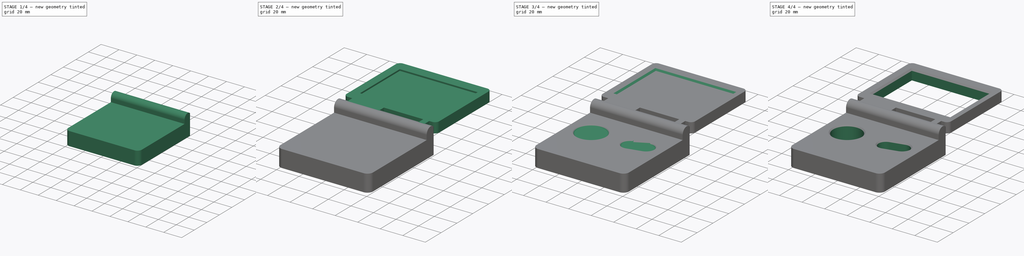
[diagram: build sequence overview — one tinted view per stage of 4, left to right]
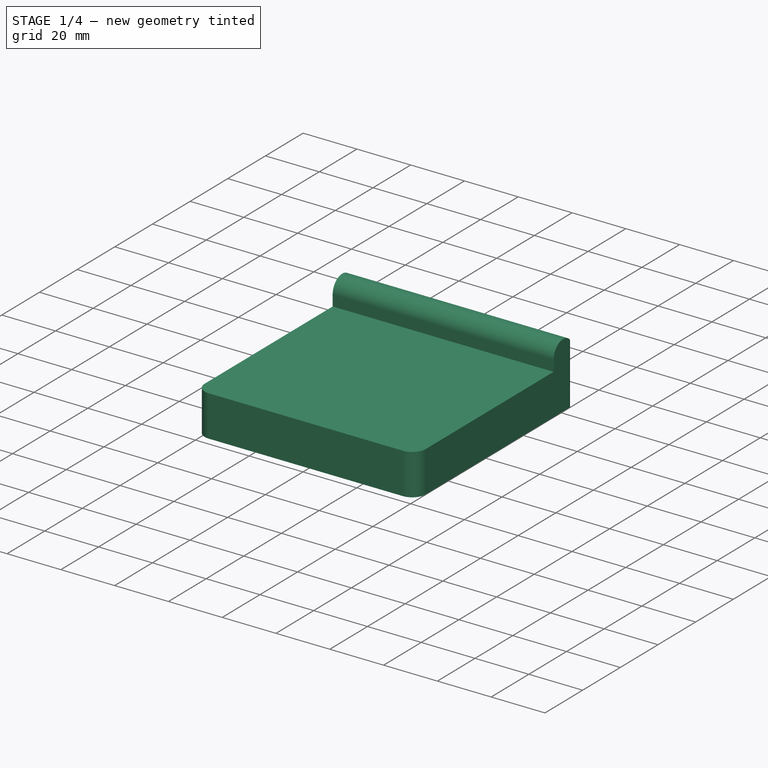
[diagram: stage 1 of 4 — iso view after this stage's code; geometry added in this stage tinted green]
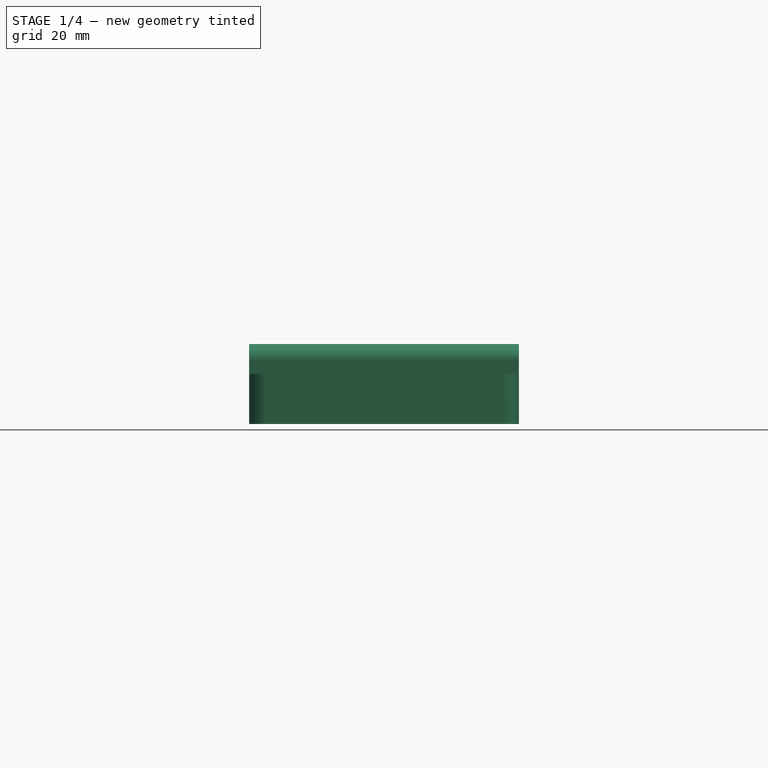
[diagram: stage 1 of 4 — front view after this stage's code; geometry added in this stage tinted green]
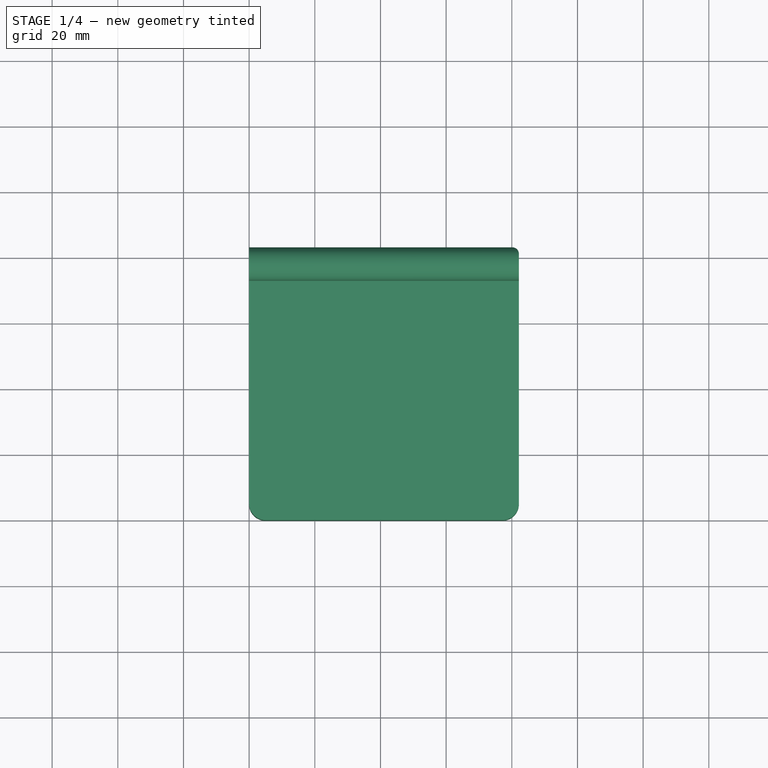
[diagram: stage 1 of 4 — top view after this stage's code; geometry added in this stage tinted green]
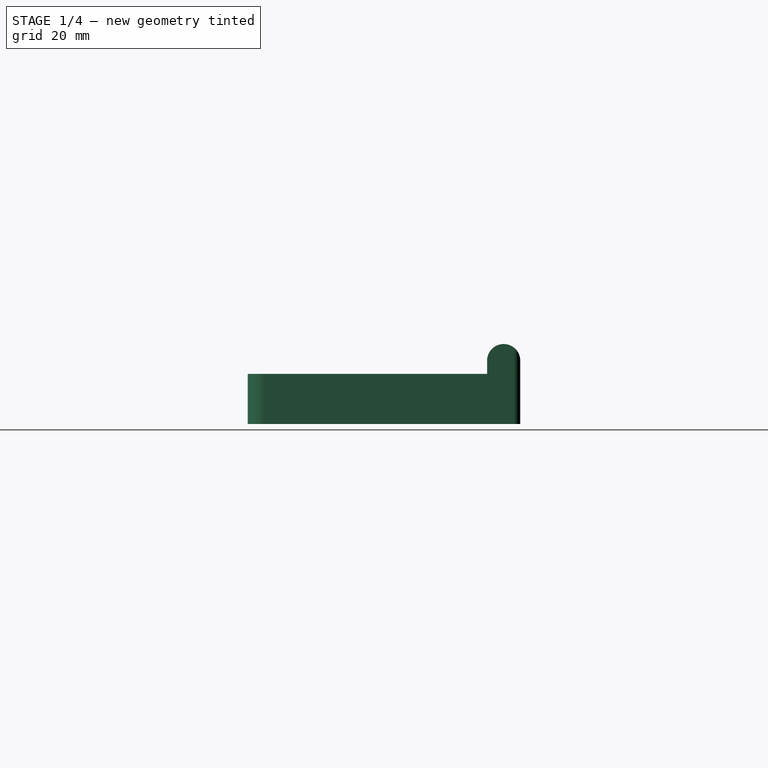
[diagram: stage 1 of 4 — right view after this stage's code; geometry added in this stage tinted green]
FCSTD DOCUMENT  (FreeCAD 0.20R29177 +426 (Git))
Label: GBA SP Icon
License: Creative Commons Attribution-NonCommercial-ShareAlike
LicenseURL: http://creativecommons.org/licenses/by-nc-sa/4.0/
objects: PartDesign::Pocket×7, Sketcher::SketchObject×5, PartDesign::Pad×3, PartDesign::Chamfer×2, PartDesign::Body×1, TechDraw::DrawSVGTemplate×1, TechDraw::DrawViewPart×1, TechDraw::DrawPage×1
note: 30 computed .brp shape members not serialized (recipe doc carries the construction recipe); baked Part::Feature solids carry a one-line shape summary decoded from their .brp

FEATURE [Sketcher::SketchObject] Sketch
  FullyConstrained = true
  MapMode = 5
  Support = -> [XY_Plane]
  sketch-geometry (12):
    g0: LineSegment StartX=0 StartY=0 StartZ=0 EndX=82.15 EndY=0 EndZ=0
    g1: LineSegment StartX=82.15 StartY=0 StartZ=0 EndX=82.15 EndY=83 EndZ=0
    g2: LineSegment StartX=82.15 StartY=83 StartZ=0 EndX=0 EndY=83 EndZ=0
    g3: LineSegment StartX=0 StartY=83 StartZ=0 EndX=0 EndY=0 EndZ=0
    g4: LineSegment StartX=5 StartY=0 StartZ=0 EndX=77.15 EndY=0 EndZ=0
    g5: LineSegment StartX=82.15 StartY=5 StartZ=0 EndX=82.15 EndY=81 EndZ=0
    g6: LineSegment StartX=80.15 StartY=83 StartZ=0 EndX=2 EndY=83 EndZ=0
    g7: LineSegment StartX=0 StartY=81 StartZ=0 EndX=0 EndY=5 EndZ=0
    g8: ArcOfCircle CenterX=2 CenterY=81 CenterZ=0 NormalX=0 NormalY=0 NormalZ=1 AngleXU=0 Radius=2 StartAngle=1.5708 EndAngle=3.14159
    g9: ArcOfCircle CenterX=80.15 CenterY=81 CenterZ=0 NormalX=0 NormalY=0 NormalZ=1 AngleXU=0 Radius=2 StartAngle=-1.33e-14 EndAngle=1.5708
    g10: ArcOfCircle CenterX=77.15 CenterY=5 CenterZ=0 NormalX=0 NormalY=0 NormalZ=1 AngleXU=0 Radius=5 StartAngle=4.71239 EndAngle=6.28319
    g11: ArcOfCircle CenterX=5 CenterY=5 CenterZ=0 NormalX=0 NormalY=0 NormalZ=1 AngleXU=0 Radius=5 StartAngle=3.14159 EndAngle=4.71239
  constraints (31):
    c: Coincident(g0,g1)
    c: Coincident(g1,g2)
    c: Coincident(g2,g3)
    c: Coincident(g3,g0)
    c: Horizontal(g0)
    c: Horizontal(g2)
    c: Vertical(g1)
    c: Vertical(g3)
    c: Coincident(g0,g-1)
    c: DistanceX(g0,g0) = 82.15
    c: DistanceY(g1,g1) = 83
    c: Horizontal(g4)
    c: Horizontal(g6)
    c: Vertical(g5)
    c: Vertical(g7)
    c: Tangent(g7,g8) = -1.5708
    c: Tangent(g6,g8) = -1.5708
    c: Tangent(g6,g9) = -1.5708
    c: Tangent(g5,g9) = -1.5708
    c: Tangent(g5,g10) = -1.5708
    c: Tangent(g4,g10) = -1.5708
    c: Tangent(g4,g11) = -1.5708
    c: Tangent(g7,g11) = -1.5708
    c: Equal(g11,g10)
    c: Equal(g9,g8)
    c: PointOnObject(g7,g3)
    c: PointOnObject(g5,g1)
    c: PointOnObject(g6,g2)
    c: PointOnObject(g4,g0)
    c: Diameter(g10) = 10
    c: Diameter(g9) = 4
FEATURE [PartDesign::Pad] Pad
  Direction = (0,0,1)
  Length = 15.25
  Length2 = 10
  Profile = -> Sketch
  ReferenceAxis = -> Sketch [N_Axis]
  Type = 0
FEATURE [Sketcher::SketchObject] Sketch002
  ExternalGeometry = -> [Pad]
  FullyConstrained = true
  MapMode = 5
  Placement = pos=(82.15,0,0) rot=(0.57735,0.57735,0.57735;2.0944rad)
  Support = -> [Pad]
  sketch-geometry (5):
    g0: LineSegment StartX=83 StartY=15.25 StartZ=0 EndX=72.9 EndY=15.25 EndZ=0
    g1: LineSegment StartX=77.95 StartY=24.35 StartZ=0 EndX=77.95 EndY=15.25 EndZ=0
    g2: LineSegment StartX=72.9 StartY=15.25 StartZ=0 EndX=72.9 EndY=19.3 EndZ=0
    g3: LineSegment StartX=83 StartY=15.25 StartZ=0 EndX=83 EndY=19.3 EndZ=0
    g4: ArcOfCircle CenterX=77.95 CenterY=19.3 CenterZ=0 NormalX=0 NormalY=0 NormalZ=1 AngleXU=0 Radius=5.05 StartAngle=1.60054e-11 EndAngle=3.14159
  constraints (13):
    c: Coincident(g0,g-4)
    c: PointOnObject(g0,g-3)
    c: DistanceX(g0,g0) = 10.1
    c: Vertical(g1)
    c: Symmetric(g0,g0,g1)
    c: DistanceY(g1,g1) = 9.1
    c: Coincident(g2,g0)
    c: Vertical(g2)
    c: Coincident(g3,g0)
    c: Vertical(g3)
    c: PointOnObject(g1,g4)
    c: Tangent(g4,g2) = 1.5708
    c: Tangent(g4,g3) = -1.5708
FEATURE [PartDesign::Pad] Pad001
  BaseFeature = -> Pad
  Direction = (1,0,0)
  Length = 10
  Length2 = 10
  Profile = -> Sketch002
  ReferenceAxis = -> Sketch002 [N_Axis]
  Reversed = true
  Type = 3
  UpToFace = -> Pad [Face7]
FEATURE [PartDesign::Pocket] Pocket
  BaseFeature = -> Pad001
  Direction = (0,-6.339e-13,1)
  Length = 10
  Length2 = 5
  Profile = -> Pad001 [Face14]
  Type = 0
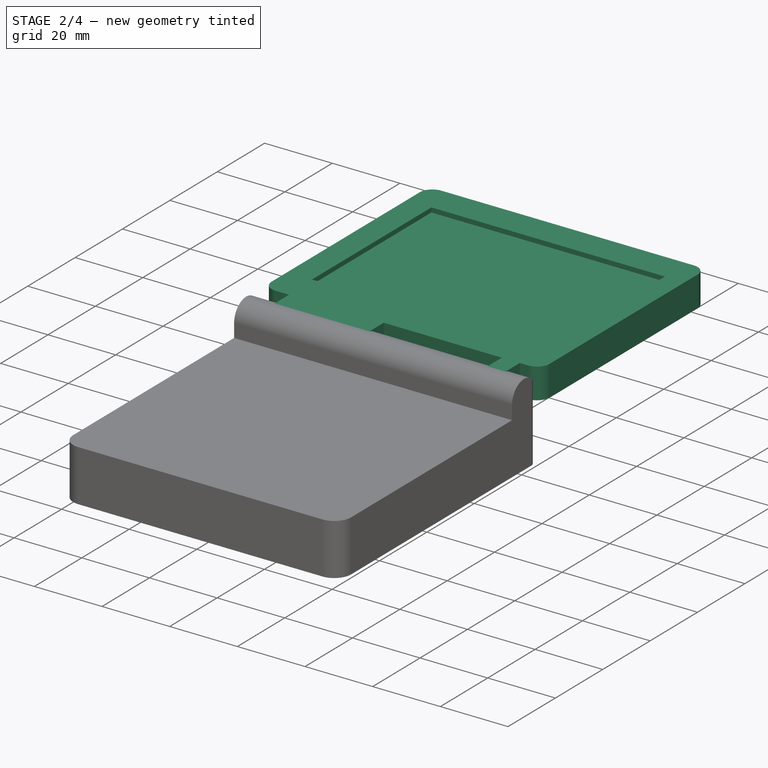
[diagram: stage 2 of 4 — iso view after this stage's code; geometry added in this stage tinted green]
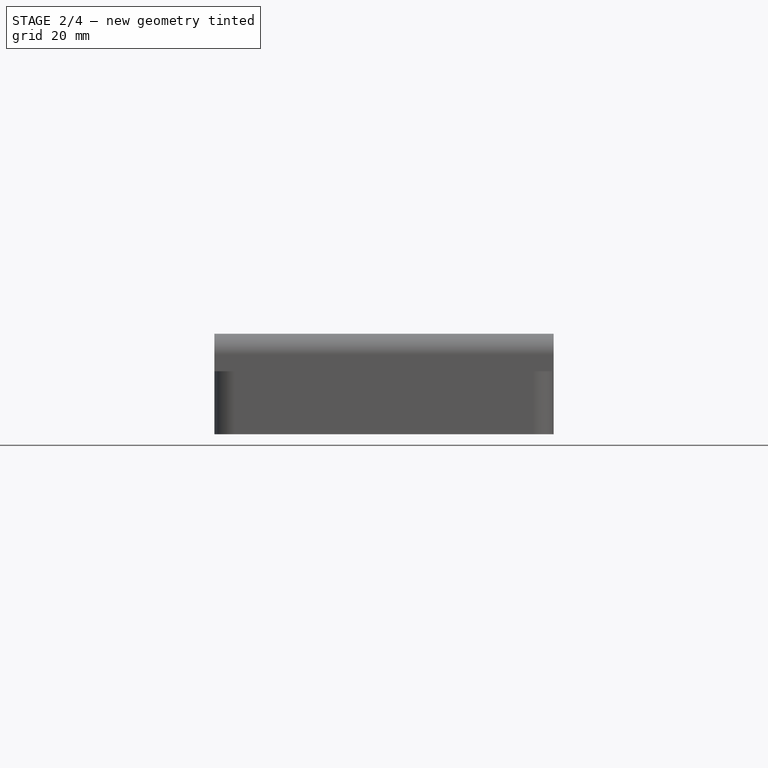
[diagram: stage 2 of 4 — front view after this stage's code; geometry added in this stage tinted green]
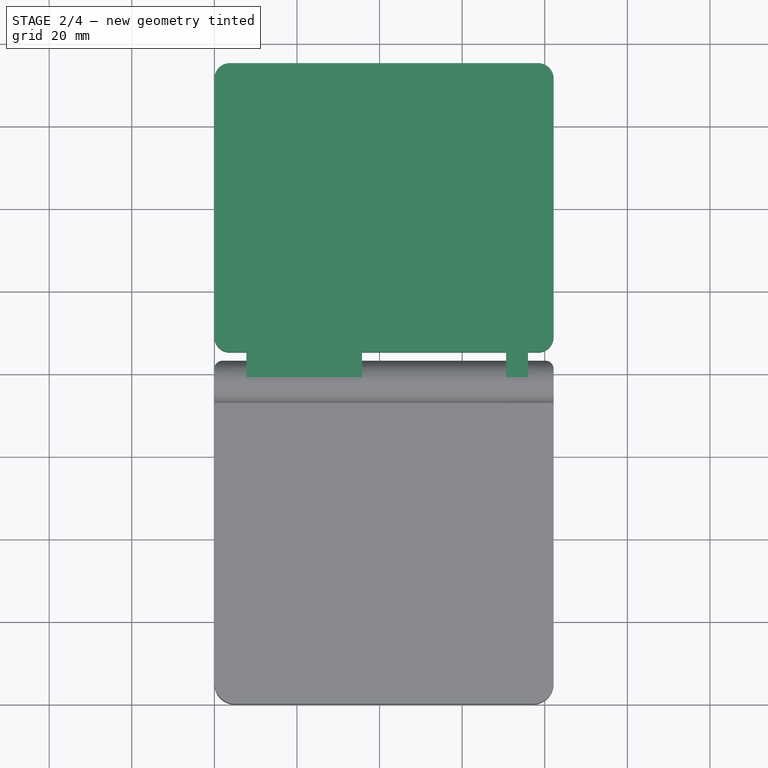
[diagram: stage 2 of 4 — top view after this stage's code; geometry added in this stage tinted green]
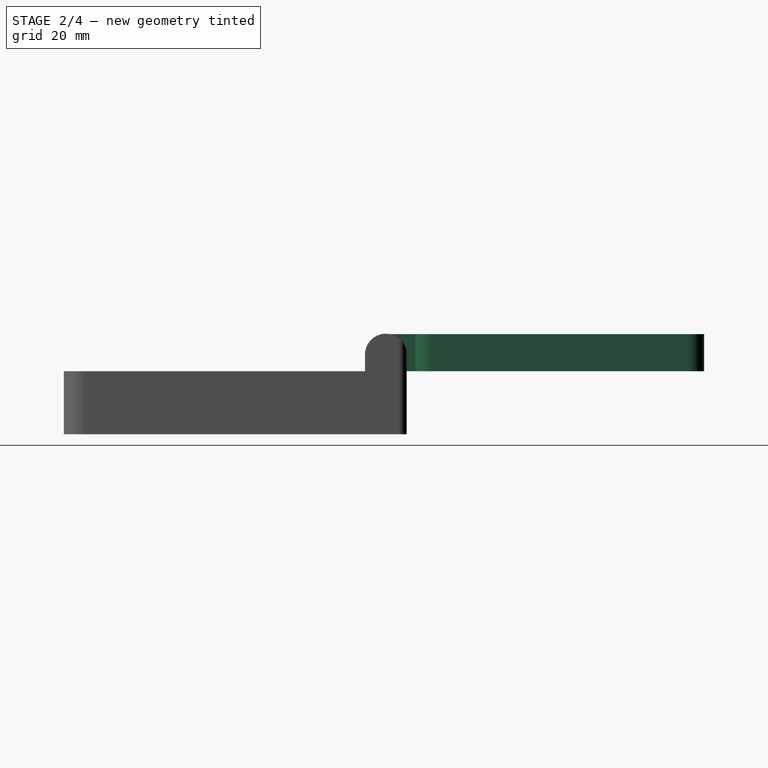
[diagram: stage 2 of 4 — right view after this stage's code; geometry added in this stage tinted green]
FEATURE [PartDesign::Pocket] Pocket001
  BaseFeature = -> Pocket
  Direction = (0,-6.339e-13,1)
  Length = 10
  Length2 = 5
  Profile = -> Pocket [Face16]
  Type = 0
FEATURE [Sketcher::SketchObject] Sketch003
  ExternalGeometry = -> [Pocket001]
  FullyConstrained = true
  MapMode = 5
  Placement = pos=(0,0,15.25) rot=(0,0,1;0rad)
  Support = -> [Pocket001]
  sketch-geometry (25):
    g0: LineSegment StartX=0 StartY=83 StartZ=0 EndX=82.15 EndY=83 EndZ=0
    g1: LineSegment StartX=82.15 StartY=83 StartZ=0 EndX=82.15 EndY=155 EndZ=0
    g2: LineSegment StartX=82.15 StartY=155 StartZ=0 EndX=0 EndY=155 EndZ=0
    g3: LineSegment StartX=0 StartY=155 StartZ=0 EndX=0 EndY=83 EndZ=0
    g4: LineSegment StartX=82.15 StartY=72.9 StartZ=0 EndX=82.15 EndY=83 EndZ=0
    g5: LineSegment StartX=3.75 StartY=155 StartZ=0 EndX=78.4 EndY=155 EndZ=0
    g6: LineSegment StartX=82.15 StartY=151.25 StartZ=0 EndX=82.15 EndY=88.75 EndZ=0
    g7: LineSegment StartX=78.4 StartY=85 StartZ=0 EndX=3.75 EndY=85 EndZ=0
    g8: LineSegment StartX=0 StartY=88.75 StartZ=0 EndX=0 EndY=151.25 EndZ=0
    g9: ArcOfCircle CenterX=78.4 CenterY=88.75 CenterZ=0 NormalX=0 NormalY=0 NormalZ=1 AngleXU=0 Radius=3.75 StartAngle=4.71239 EndAngle=6.28319
    g10: ArcOfCircle CenterX=3.75 CenterY=88.75 CenterZ=0 NormalX=0 NormalY=0 NormalZ=1 AngleXU=0 Radius=3.75 StartAngle=3.14159 EndAngle=4.71239
    g11: ArcOfCircle CenterX=3.75 CenterY=151.25 CenterZ=0 NormalX=0 NormalY=0 NormalZ=1 AngleXU=0 Radius=3.75 StartAngle=1.5708 EndAngle=3.14159
    g12: ArcOfCircle CenterX=78.4 CenterY=151.25 CenterZ=0 NormalX=0 NormalY=0 NormalZ=1 AngleXU=0 Radius=3.75 StartAngle=-2.7e-15 EndAngle=1.5708
    g13: LineSegment StartX=7.75 StartY=85 StartZ=0 EndX=35.75 EndY=85 EndZ=0
    g14: LineSegment StartX=35.75 StartY=85 StartZ=0 EndX=35.75 EndY=77.95 EndZ=0
    g15: LineSegment StartX=35.75 StartY=77.95 StartZ=0 EndX=7.75 EndY=77.95 EndZ=0
    g16: LineSegment StartX=7.75 StartY=77.95 StartZ=0 EndX=7.75 EndY=85 EndZ=0
    g17: LineSegment StartX=82.15 StartY=77.95 StartZ=0 EndX=0 EndY=77.95 EndZ=0
    g18: LineSegment StartX=75.95 StartY=85 StartZ=0 EndX=70.65 EndY=85 EndZ=0
    g19: LineSegment StartX=70.65 StartY=85 StartZ=0 EndX=70.65 EndY=77.95 EndZ=0
    g20: LineSegment StartX=70.65 StartY=77.95 StartZ=0 EndX=75.95 EndY=77.95 EndZ=0
    g21: LineSegment StartX=75.95 StartY=77.95 StartZ=0 EndX=75.95 EndY=85 EndZ=0
    g22: LineSegment StartX=3.75 StartY=85 StartZ=0 EndX=7.75 EndY=85 EndZ=0
    g23: LineSegment StartX=35.75 StartY=85 StartZ=0 EndX=70.65 EndY=85 EndZ=0
    g24: LineSegment StartX=75.95 StartY=85 StartZ=0 EndX=78.4 EndY=85 EndZ=0
  constraints (67):
    c: Coincident(g0,g1)
    c: Coincident(g1,g2)
    c: Coincident(g2,g3)
    c: Coincident(g3,g0)
    c: Horizontal(g0)
    c: Horizontal(g2)
    c: Vertical(g1)
    c: Vertical(g3)
    c: PointOnObject(g0,g-2)
    c: Coincident(g4,g-4)
    c: Coincident(g4,g0)
    c: Vertical(g4)
    c: PointOnObject(g-3,g0)
    c: DistanceY(g1,g1) = 72
    c: Horizontal(g5)
    c: Horizontal(g7)
    c: Vertical(g6)
    c: Vertical(g8)
    c: Tangent(g7,g9) = 1.5708
    c: Tangent(g6,g9) = 1.5708
    c: Tangent(g7,g10) = 1.5708
    c: Tangent(g8,g10) = 1.5708
    c: Tangent(g8,g11) = 1.5708
    c: Tangent(g5,g11) = 1.5708
    c: Tangent(g5,g12) = 1.5708
    c: Tangent(g6,g12) = 1.5708
    c: PointOnObject(g5,g2)
    c: PointOnObject(g6,g1)
    c: PointOnObject(g8,g3)
    c: DistanceY(g4,g7) = 2
    c: Equal(g12,g11)
    c: Equal(g11,g10)
    c: Equal(g10,g9)
    c: Diameter(g12) = 7.5
    c: Coincident(g13,g14)
    c: Coincident(g14,g15)
    c: Coincident(g15,g16)
    c: Coincident(g16,g13)
    c: Horizontal(g13)
    c: Horizontal(g15)
    c: Vertical(g14)
    c: Vertical(g16)
    c: PointOnObject(g13,g7)
    c: PointOnObject(g17,g-2)
    c: Horizontal(g17)
    c: Symmetric(g0,g4,g17)
    c: PointOnObject(g14,g17)
    c: DistanceX(g15,g15) = 28
    c: DistanceX(g0,g16) = 7.75
    c: Coincident(g18,g19)
    c: Coincident(g19,g20)
    c: Coincident(g20,g21)
    c: Coincident(g21,g18)
    c: Horizontal(g18)
    c: Horizontal(g20)
    c: Vertical(g19)
    c: Vertical(g21)
    c: PointOnObject(g18,g7)
    c: PointOnObject(g19,g17)
    c: DistanceX(g20,g20) = 5.3
    c: DistanceX(g20,g17) = 6.2
    c: Coincident(g22,g10)
    c: Coincident(g22,g16)
    c: Coincident(g23,g14)
    c: Coincident(g23,g19)
    c: Coincident(g24,g21)
    c: Coincident(g24,g9)
FEATURE [PartDesign::Pad] Pad002
  BaseFeature = -> Pocket001
  Direction = (0,0,1)
  Length = 9
  Length2 = 10
  Offset = 9.1
  Profile = -> Sketch003
  ReferenceAxis = -> Sketch003 [N_Axis]
  Refine = true
  Type = 0
FEATURE [Sketcher::SketchObject] Sketch005
  ExternalGeometry = -> [Pad002]
  FullyConstrained = true
  MapMode = 5
  Placement = pos=(0,0,24.25) rot=(0,0,1;0rad)
  Support = -> [Pad002]
  sketch-geometry (4):
    g0: LineSegment StartX=7.3 StartY=145.75 StartZ=0 EndX=76.35 EndY=145.75 EndZ=0
    g1: LineSegment StartX=76.35 StartY=145.75 StartZ=0 EndX=76.35 EndY=95.35 EndZ=0
    g2: LineSegment StartX=76.35 StartY=95.35 StartZ=0 EndX=7.3 EndY=95.35 EndZ=0
    g3: LineSegment StartX=7.3 StartY=95.35 StartZ=0 EndX=7.3 EndY=145.75 EndZ=0
  constraints (12):
    c: Coincident(g0,g1)
    c: Coincident(g1,g2)
    c: Coincident(g2,g3)
    c: Coincident(g3,g0)
    c: Horizontal(g0)
    c: Horizontal(g2)
    c: Vertical(g1)
    c: Vertical(g3)
    c: DistanceX(g0,g-4) = 5.8
    c: DistanceY(g0,g-3) = 9.25
    c: DistanceY(g-6,g1) = 10.35
    c: DistanceX(g-5,g2) = 7.3
FEATURE [PartDesign::Pocket] Pocket002
  BaseFeature = -> Pad002
  Direction = (0,0,-1)
  Length = 1.35
  Length2 = 5
  Profile = -> Sketch005
  ReferenceAxis = -> Sketch005 [N_Axis]
  Type = 0
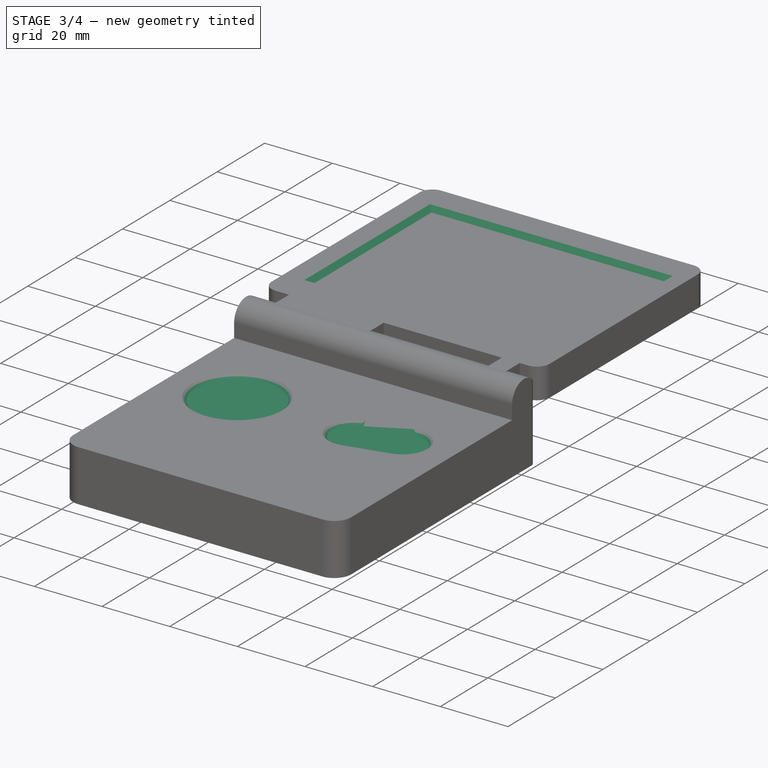
[diagram: stage 3 of 4 — iso view after this stage's code; geometry added in this stage tinted green]
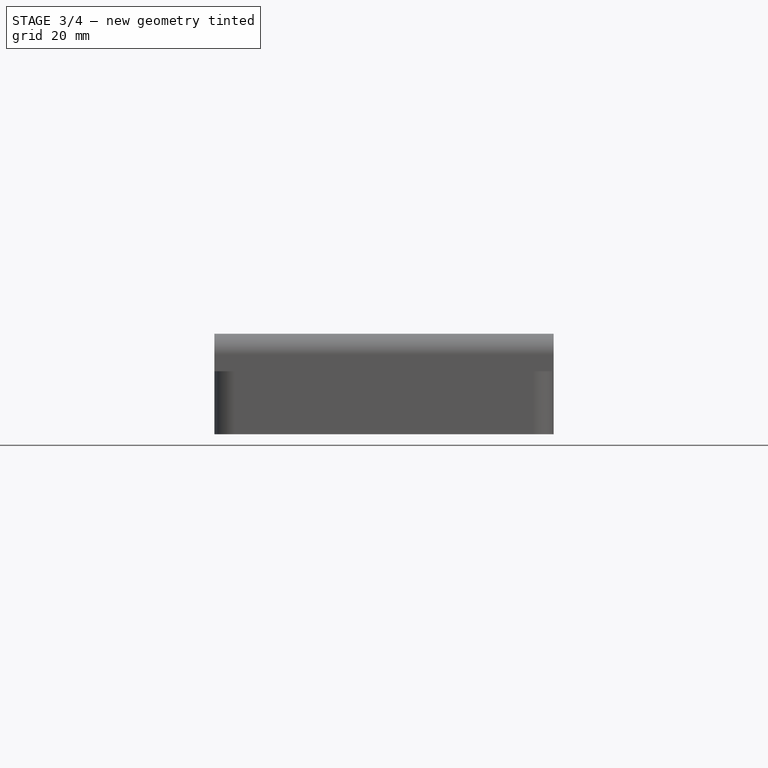
[diagram: stage 3 of 4 — front view after this stage's code; geometry added in this stage tinted green]
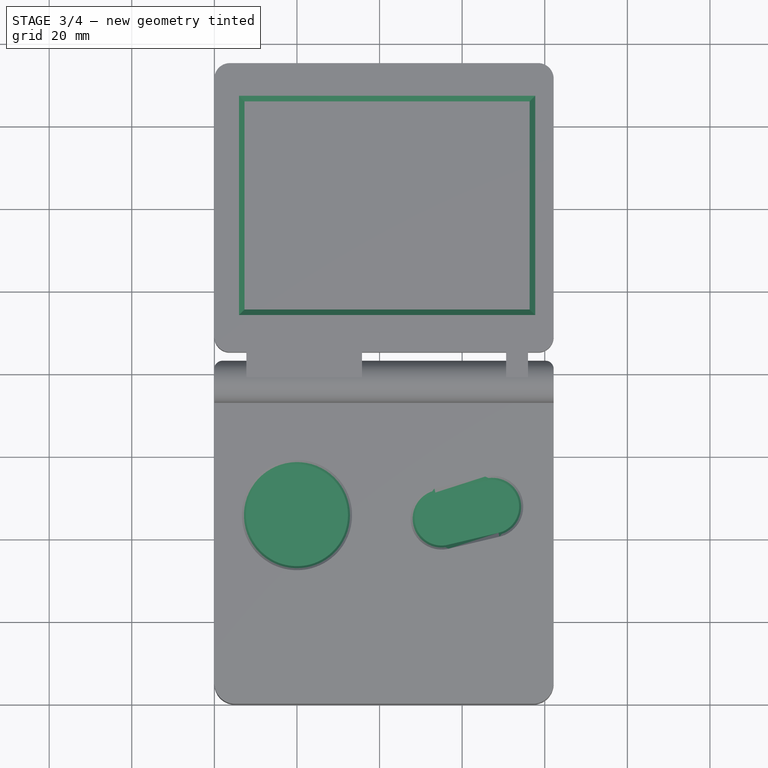
[diagram: stage 3 of 4 — top view after this stage's code; geometry added in this stage tinted green]
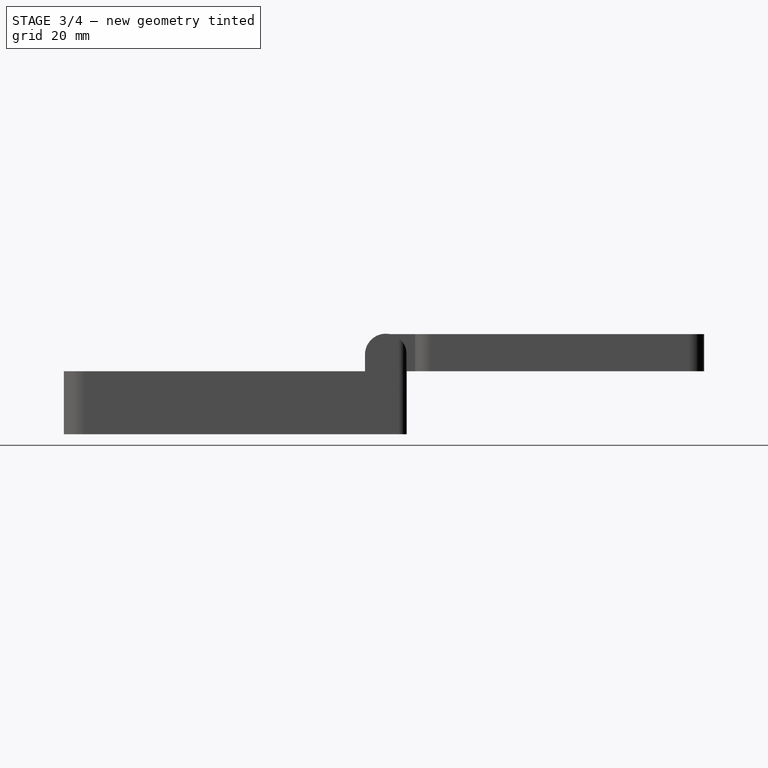
[diagram: stage 3 of 4 — right view after this stage's code; geometry added in this stage tinted green]
FEATURE [PartDesign::Chamfer] Chamfer
  Angle = 45
  Base = -> Pocket002 [Edge59,Edge62,Edge61,Edge60]
  BaseFeature = -> Pocket002
  ChamferType = 0
  FlipDirection = false
  Size = 1.34
  Size2 = 1
  SupportTransform = false
  UseAllEdges = false
FEATURE [Sketcher::SketchObject] Sketch006
  ExternalGeometry = -> [Chamfer]
  FullyConstrained = true
  MapMode = 5
  Placement = pos=(0,0,15.25) rot=(0,0,1;0rad)
  Support = -> [Chamfer]
  sketch-geometry (17):
    g0: Circle CenterX=20 CenterY=45.7 CenterZ=0 NormalX=0 NormalY=0 NormalZ=1 AngleXU=0 Radius=12.35
    g1: ArcOfCircle CenterX=67.3 CenterY=47.75 CenterZ=0 NormalX=0 NormalY=0 NormalZ=1 AngleXU=0 Radius=6.5 StartAngle=4.94393 EndAngle=8.08553
    g2: ArcOfCircle CenterX=55 CenterY=44.85 CenterZ=0 NormalX=0 NormalY=0 NormalZ=1 AngleXU=0 Radius=6.5 StartAngle=1.80234 EndAngle=4.94393
    g3: LineSegment StartX=65.8084 StartY=54.0765 StartZ=0 EndX=53.5084 EndY=51.1765 EndZ=0
    g4: LineSegment StartX=56.4916 StartY=38.5235 StartZ=0 EndX=68.7916 EndY=41.4235 EndZ=0
    g5: LineSegment StartX=82.15 StartY=47.75 StartZ=0 EndX=73.8 EndY=47.75 EndZ=0
    g6: LineSegment StartX=67.3 StartY=72.9 StartZ=0 EndX=67.3 EndY=54.25 EndZ=0
    g7: LineSegment StartX=67.3 StartY=54.25 StartZ=0 EndX=67.3 EndY=47.75 EndZ=0
    g8: LineSegment StartX=67.3 StartY=47.75 StartZ=0 EndX=73.8 EndY=47.75 EndZ=0
    g9: LineSegment StartX=55 StartY=44.85 StartZ=0 EndX=55 EndY=38.35 EndZ=0
    g10: LineSegment StartX=55 StartY=38.35 StartZ=0 EndX=55 EndY=0 EndZ=0
    g11: LineSegment StartX=55 StartY=44.85 StartZ=0 EndX=48.5 EndY=44.85 EndZ=0
    g12: LineSegment StartX=48.5 StartY=44.85 StartZ=0 EndX=0 EndY=44.85 EndZ=0
    g13: LineSegment StartX=0 StartY=45.7 StartZ=0 EndX=7.65 EndY=45.7 EndZ=0
    g14: LineSegment StartX=7.65 StartY=45.7 StartZ=0 EndX=20 EndY=45.7 EndZ=0
    g15: LineSegment StartX=20 StartY=45.7 StartZ=0 EndX=20 EndY=33.35 EndZ=0
    g16: LineSegment StartX=20 StartY=33.35 StartZ=0 EndX=20 EndY=0 EndZ=0
  constraints (49):
    c: Tangent(g1,g3) = -1.5708
    c: Tangent(g3,g2) = -1.5708
    c: Tangent(g2,g4) = -1.5708
    c: Tangent(g4,g1) = -1.5708
    c: Equal(g1,g2)
    c: PointOnObject(g5,g-3)
    c: Horizontal(g5)
    c: DistanceX(g5,g5) = 8.35
    c: PointOnObject(g5,g1)
    c: PointOnObject(g6,g-6)
    c: PointOnObject(g6,g1)
    c: Vertical(g6)
    c: DistanceY(g6,g6) = 18.65
    c: Coincident(g7,g6)
    c: Coincident(g7,g1)
    c: Vertical(g7)
    c: Coincident(g8,g1)
    c: Coincident(g8,g5)
    c: Horizontal(g8)
    c: Coincident(g9,g2)
    c: Vertical(g9)
    c: Coincident(g10,g9)
    c: PointOnObject(g10,g-5)
    c: Vertical(g10)
    c: Coincident(g11,g2)
    c: PointOnObject(g11,g2)
    c: Coincident(g12,g11)
    c: PointOnObject(g12,g-4)
    c: Horizontal(g12)
    c: Horizontal(g11)
    c: DistanceY(g10,g10) = 38.35
    c: DistanceX(g12,g12) = 48.5
    c: Diameter(g1) = 13
    c: PointOnObject(g9,g2)
    c: Diameter(g0) = 24.7
    c: PointOnObject(g13,g-4)
    c: PointOnObject(g13,g0)
    c: Horizontal(g13)
    c: Coincident(g14,g13)
    c: Coincident(g14,g0)
    c: Horizontal(g14)
    c: DistanceX(g13,g13) = 7.65
    c: Coincident(g15,g0)
    c: PointOnObject(g15,g0)
    c: Vertical(g15)
    c: Coincident(g16,g15)
    c: PointOnObject(g16,g-5)
    c: Vertical(g16)
    c: DistanceY(g16,g16) = 33.35
FEATURE [PartDesign::Pocket] Pocket003
  BaseFeature = -> Chamfer
  Direction = (0,0,-1)
  Length = 1
  Length2 = 5
  Profile = -> Sketch006
  ReferenceAxis = -> Sketch006 [N_Axis]
  Type = 0
FEATURE [PartDesign::Chamfer] Chamfer001
  Angle = 45
  Base = -> Pocket003 [Edge106,Edge104,Edge107,Edge105,Edge108]
  BaseFeature = -> Pocket003
  ChamferType = 0
  FlipDirection = false
  Size = 0.99
  Size2 = 1
  SupportTransform = false
  UseAllEdges = false
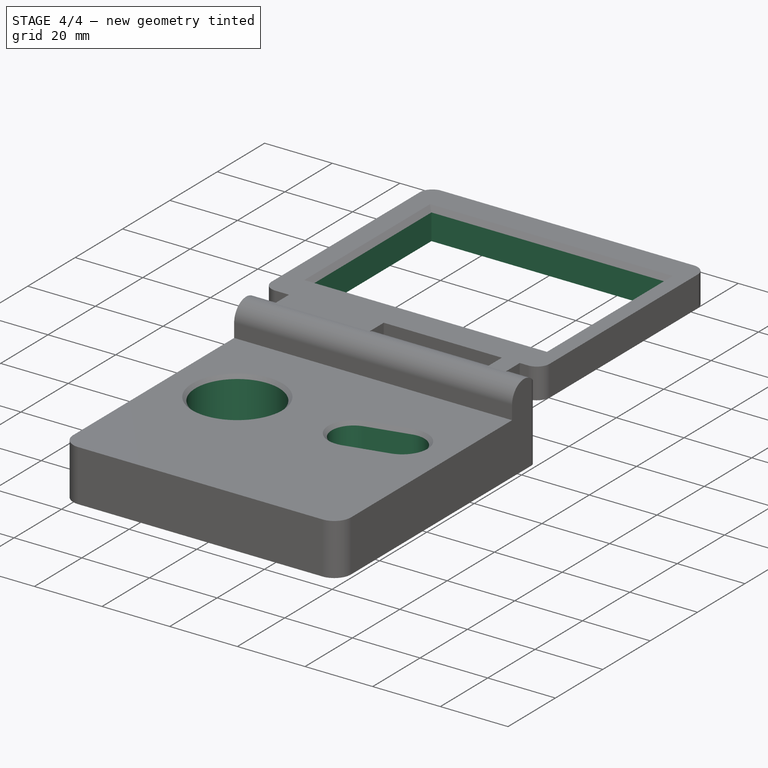
[diagram: stage 4 of 4 — iso view after this stage's code; geometry added in this stage tinted green]
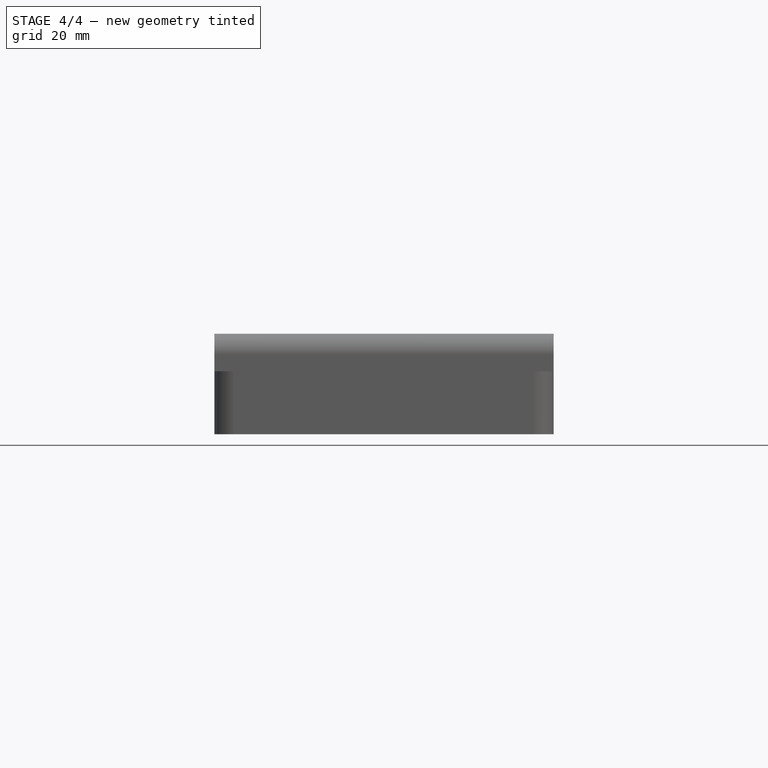
[diagram: stage 4 of 4 — front view after this stage's code; geometry added in this stage tinted green]
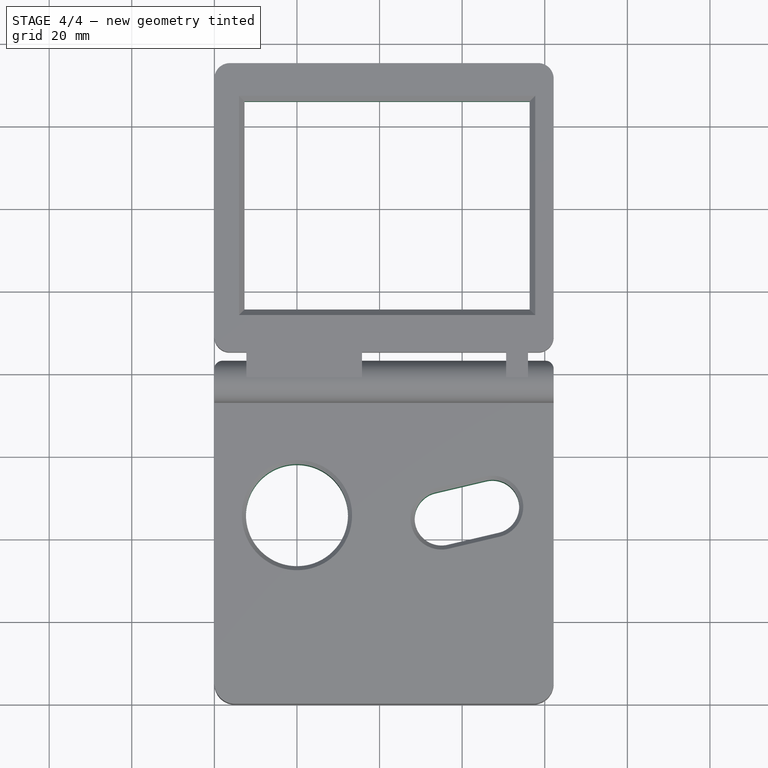
[diagram: stage 4 of 4 — top view after this stage's code; geometry added in this stage tinted green]
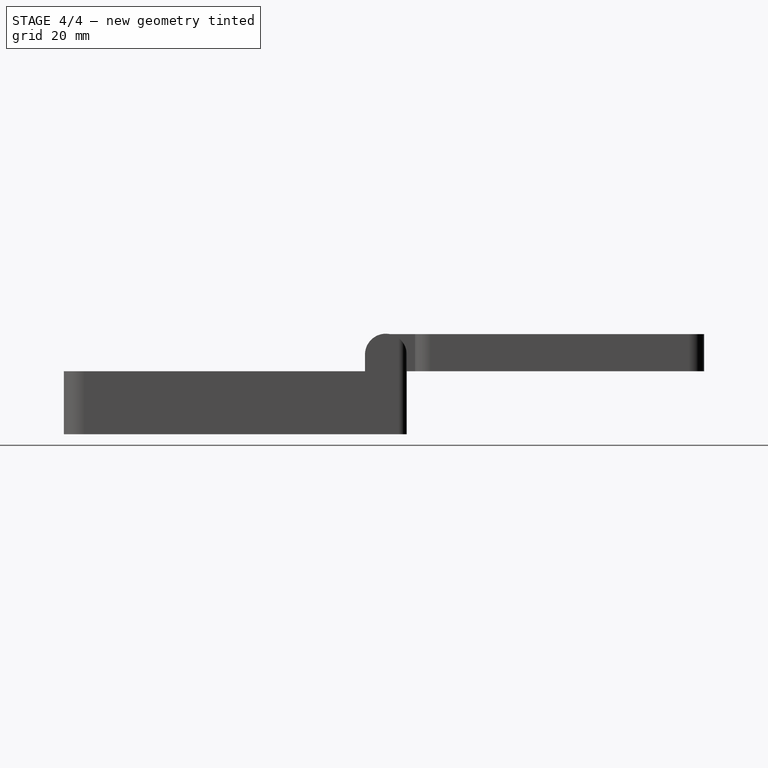
[diagram: stage 4 of 4 — right view after this stage's code; geometry added in this stage tinted green]
FEATURE [PartDesign::Pocket] Pocket004
  BaseFeature = -> Chamfer001
  Direction = (0,0,-1)
  Length = 20
  Length2 = 5
  Profile = -> Chamfer001 [Face29]
  Type = 0
FEATURE [PartDesign::Pocket] Pocket005
  BaseFeature = -> Pocket004
  Direction = (0,0,-1)
  Length = 20
  Length2 = 5
  Profile = -> Pocket004 [Face22]
  Type = 0
FEATURE [PartDesign::Pocket] Pocket006
  BaseFeature = -> Pocket005
  Direction = (0,0,-1)
  Length = 20
  Length2 = 5
  Profile = -> Pocket005 [Face52]
  Type = 0
FEATURE [PartDesign::Body] Body
  Group = -> [Sketch,Pad,Sketch002,Pad001,Pocket,Pocket001,Sketch003,Pad002,Sketch005,Pocket002,Chamfer,Sketch006,Pocket003,Chamfer001,Pocket004,Pocket005,Pocket006]
  Origin = -> Origin
  Tip = -> Pocket006
FEATURE [TechDraw::DrawSVGTemplate] Template001
  Height = 297
  Orientation = 0
  Width = 210
FEATURE [TechDraw::DrawViewPart] View
  CoarseView = false
  Direction = (0,0,1)
  Focus = 100
  HardHidden = false
  IsoCount = 0
  IsoHidden = false
  IsoVisible = false
  LockPosition = false
  Perspective = false
  Rotation = 0
  ScaleType = 0
  SeamHidden = false
  SeamVisible = true
  SmoothHidden = false
  SmoothVisible = true
  Source = -> [Body]
  X = 63.1463
  XDirection = (1,0,0)
  Y = 201.622
FEATURE [TechDraw::DrawPage] Page001
  KeepUpdated = true
  NextBalloonIndex = 1
  ProjectionType = 0
  Template = -> Template001
  Views = -> [View]
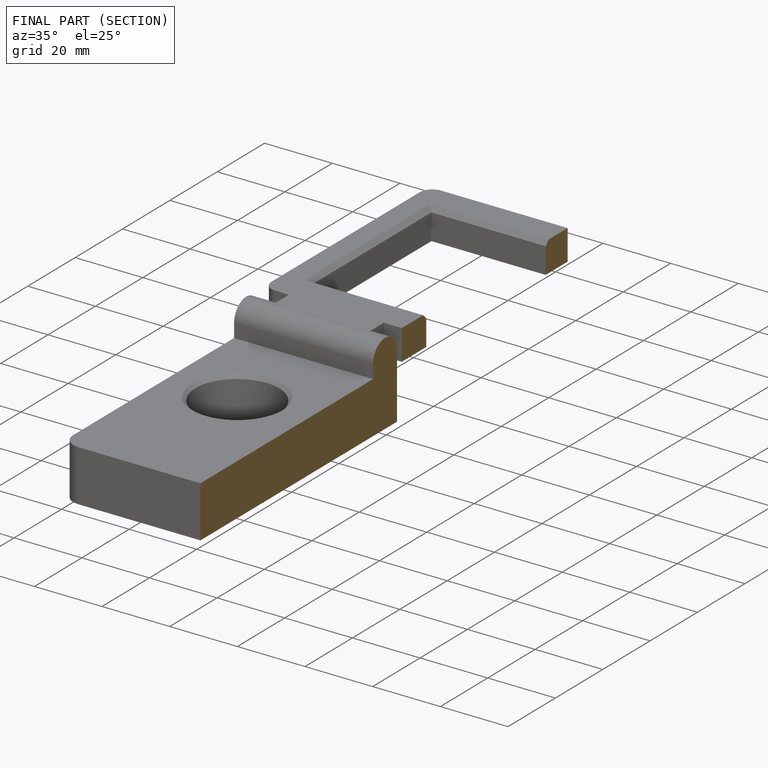
[diagram: finished part — half-section view (interior)]
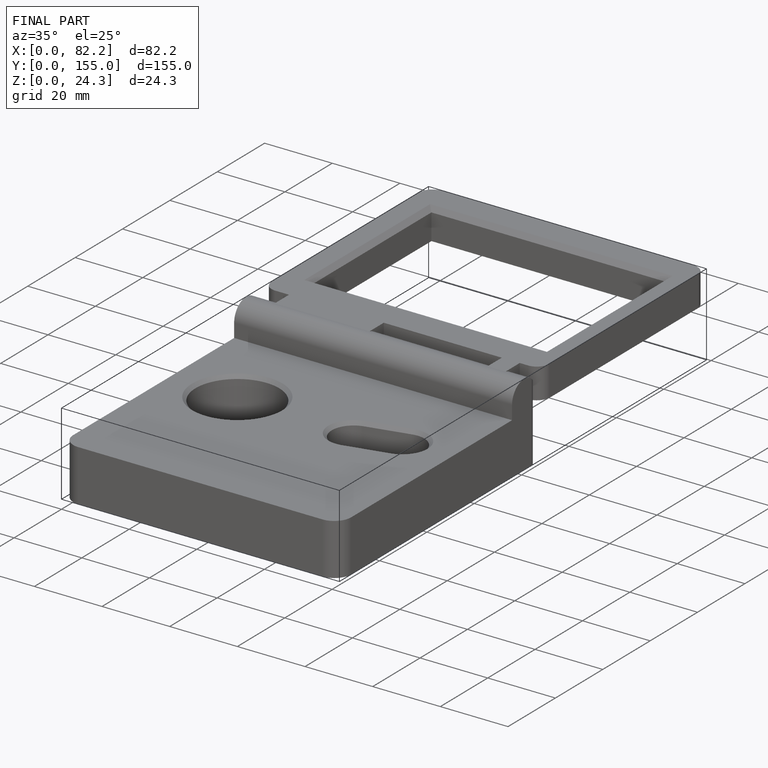
[diagram: finished part — iso view with bounding-box wireframe]
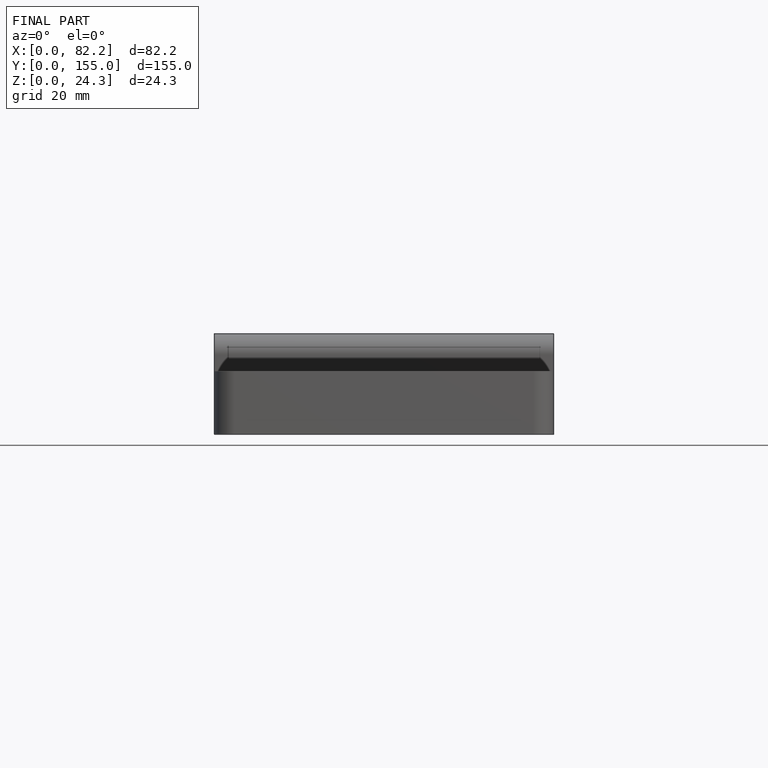
[diagram: finished part — front view with bounding-box wireframe]
